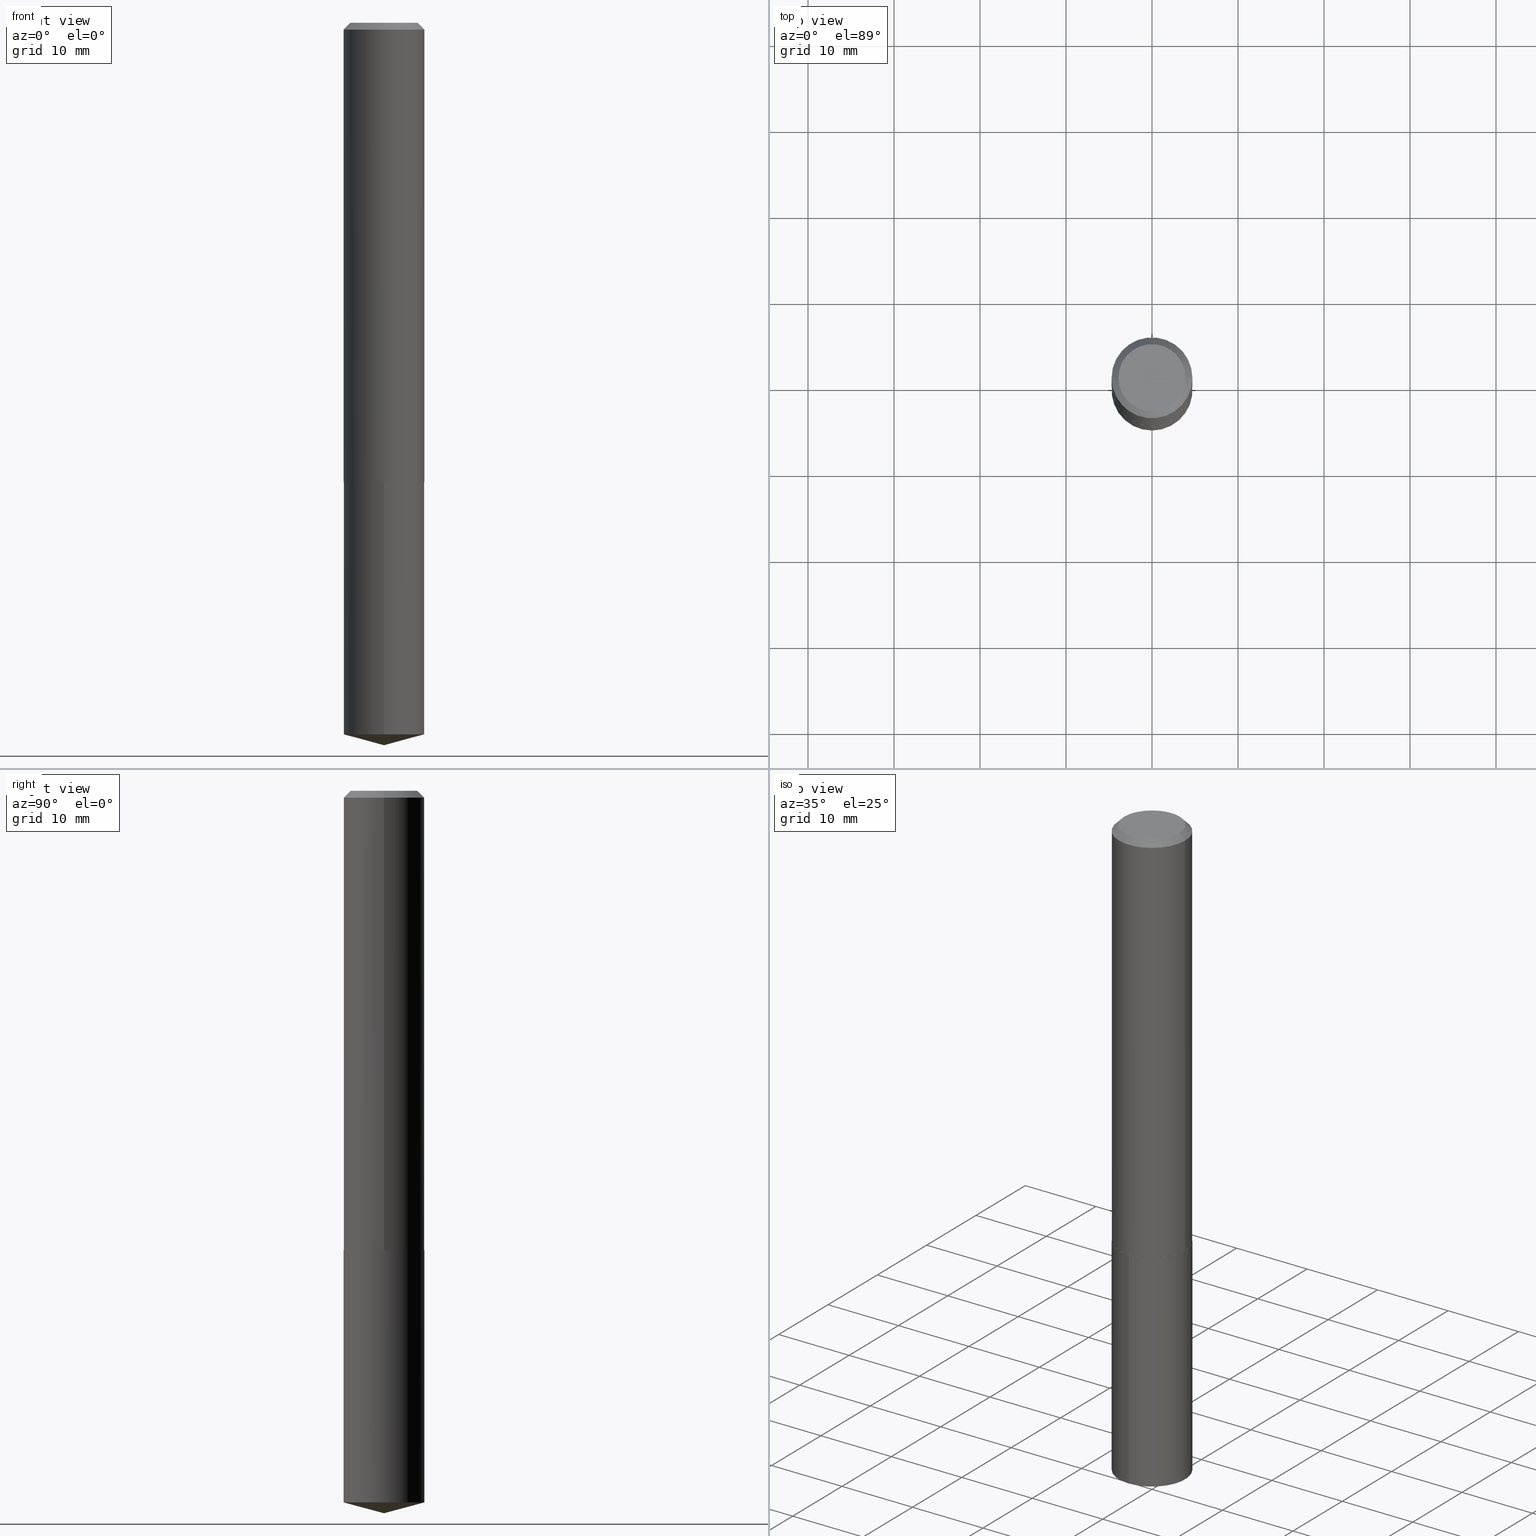
[diagram: canonical four-view strip — front | top / right | iso, engineering-drawing reading convention]
A machine part, canonical four-view strip (front | top / right | iso — engineering-drawing reading convention). The complete STEP part file that produces these views, byte-faithful:
ISO-10303-21;
HEADER;
FILE_DESCRIPTION (( 'STEP AP203' ),
    '1' );
FILE_NAME ('69029.STEP',
    '2024-04-23T14:28:28',
    ( '' ),
    ( '' ),
    'SwSTEP 2.0',
    'SolidWorks 2023',
    '' );
FILE_SCHEMA (( 'CONFIG_CONTROL_DESIGN' ));
ENDSEC;

DATA;
#1 = SECURITY_CLASSIFICATION_LEVEL ( 'unclassified' ) ;
#2 = ORIENTED_EDGE ( 'NONE', *, *, #310, .T. ) ;
#3 = EDGE_CURVE ( 'NONE', #184, #368, #292, .T. ) ;
#4 = ORIENTED_EDGE ( 'NONE', *, *, #299, .T. ) ;
#5 = CALENDAR_DATE ( 2024, 23, 4 ) ;
#6 = CIRCLE ( 'NONE', #123, 0.1850500000000000200 ) ;
#7 = EDGE_LOOP ( 'NONE', ( #304, #73, #154, #313 ) ) ;
#8 = ADVANCED_FACE ( 'NONE', ( #322 ), #260, .T. ) ;
#9 = ORIENTED_EDGE ( 'NONE', *, *, #159, .T. ) ;
#10 = AXIS2_PLACEMENT_3D ( 'NONE', #126, #160, #345 ) ;
#11 = CC_DESIGN_SECURITY_CLASSIFICATION ( #141, ( #371 ) ) ;
#12 = CARTESIAN_POINT ( 'NONE',  ( -1.292197243505792011E-15, -0.1850500000000073197, -2.102399999999999824 ) ) ;
#13 = LINE ( 'NONE', #106, #315 ) ;
#14 = FACE_OUTER_BOUND ( 'NONE', #180, .T. ) ;
#15 = PERSON_AND_ORGANIZATION_ROLE ( 'design_owner' ) ;
#16 = FACE_OUTER_BOUND ( 'NONE', #250, .T. ) ;
#17 = CIRCLE ( 'NONE', #239, 0.1845500000000003527 ) ;
#18 = LINE ( 'NONE', #12, #282 ) ;
#19 = LINE ( 'NONE', #284, #112 ) ;
#20 = DIRECTION ( 'NONE',  ( 1.000000000000000000, -6.982962677686265922E-15, 0.000000000000000000 ) ) ;
#21 = CC_DESIGN_PERSON_AND_ORGANIZATION_ASSIGNMENT ( #122, #248, ( #371 ) ) ;
#22 = DIRECTION ( 'NONE',  ( 6.863315791527696626E-15, 0.9659258262890698665, 0.2588190451025147998 ) ) ;
#23 = LINE ( 'NONE', #111, #67 ) ;
#24 = CARTESIAN_POINT ( 'NONE',  ( 7.966223129250220478E-29, -1.137345700306574597E-14, -3.257516001940621742 ) ) ;
#25 = AXIS2_PLACEMENT_3D ( 'NONE', #229, #197, #285 ) ;
#26 = AXIS2_PLACEMENT_3D ( 'NONE', #202, #388, #20 ) ;
#27 = PRODUCT_DEFINITION ( 'UNKNOWN', '', #371, #74 ) ;
#28 = DIRECTION ( 'NONE',  ( -6.982962677686265133E-15, -1.000000000000000000, 2.952551195530141356E-15 ) ) ;
#29 = MANIFOLD_SOLID_BREP ( 'Body-Move/Copy2[1]', #78 ) ;
#30 = COORDINATED_UNIVERSAL_TIME_OFFSET ( 5, 0, .BEHIND. ) ;
#31 = ORIENTED_EDGE ( 'NONE', *, *, #254, .T. ) ;
#32 = EDGE_CURVE ( 'NONE', #337, #335, #109, .T. ) ;
#33 = CARTESIAN_POINT ( 'NONE',  ( 5.141353618123632749E-29, -7.340490366783830084E-15, -2.102400000000000713 ) ) ;
#34 = ORIENTED_EDGE ( 'NONE', *, *, #289, .F. ) ;
#35 = CALENDAR_DATE ( 2024, 23, 4 ) ;
#36 = AXIS2_PLACEMENT_3D ( 'NONE', #24, #140, #82 ) ;
#37 = ORIENTED_EDGE ( 'NONE', *, *, #273, .T. ) ;
#38 = VERTEX_POINT ( 'NONE', #320 ) ;
#39 = CARTESIAN_POINT ( 'NONE',  ( -0.1537999999999999645, 1.128534055747571411E-15, 2.449293598217711460E-19 ) ) ;
#40 = CIRCLE ( 'NONE', #152, 0.1850500000000000200 ) ;
#41 = LOCAL_TIME ( 10, 28, 28.00000000000000000, #30 ) ;
#42 = FACE_OUTER_BOUND ( 'NONE', #309, .T. ) ;
#43 = APPROVAL ( #150, 'UNSPECIFIED' ) ;
#44 =( NAMED_UNIT ( * ) PLANE_ANGLE_UNIT ( ) SI_UNIT ( $, .RADIAN. ) );
#45 = ORIENTED_EDGE ( 'NONE', *, *, #172, .F. ) ;
#46 = APPROVAL_STATUS ( 'not_yet_approved' ) ;
#47 = ADVANCED_FACE ( 'NONE', ( #16 ), #131, .F. ) ;
#48 = CARTESIAN_POINT ( 'NONE',  ( 0.000000000000000000, 0.000000000000000000, 0.000000000000000000 ) ) ;
#49 = LINE ( 'NONE', #132, #353 ) ;
#50 = DIRECTION ( 'NONE',  ( -6.982962677686265133E-15, -1.000000000000000000, 2.952551195530141356E-15 ) ) ;
#51 = CONICAL_SURFACE ( 'NONE', #26, 0.1850500000000002698, 0.7853981633974482790 ) ;
#52 = EDGE_CURVE ( 'NONE', #149, #306, #18, .T. ) ;
#53 = APPLICATION_PROTOCOL_DEFINITION ( 'international standard', 'config_control_design', 1994, #88 ) ;
#54 = LINE ( 'NONE', #55, #105 ) ;
#55 = CARTESIAN_POINT ( 'NONE',  ( 0.1850500000000000200, -1.378643946326470928E-15, -0.03125000000000021511 ) ) ;
#56 = DIRECTION ( 'NONE',  ( 1.000000000000000000, -6.982962677686267499E-15, 0.000000000000000000 ) ) ;
#57 = CIRCLE ( 'NONE', #157, 0.1537999999999999645 ) ;
#58 = DIRECTION ( 'NONE',  ( -2.445468806185136597E-29, 3.491481338843145583E-15, 1.000000000000000000 ) ) ;
#59 = DATE_AND_TIME ( #331, #41 ) ;
#60 = ORIENTED_EDGE ( 'NONE', *, *, #305, .T. ) ;
#61 = VECTOR ( 'NONE', #162, 39.37007874015748854 ) ;
#62 = ORIENTED_EDGE ( 'NONE', *, *, #100, .F. ) ;
#63 = ORIENTED_EDGE ( 'NONE', *, *, #227, .T. ) ;
#64 = PERSON_AND_ORGANIZATION_ROLE ( 'creator' ) ;
#65 = EDGE_CURVE ( 'NONE', #193, #178, #57, .T. ) ;
#66 = ORIENTED_EDGE ( 'NONE', *, *, #3, .F. ) ;
#67 = VECTOR ( 'NONE', #295, 39.37007874015748143 ) ;
#68 = EDGE_LOOP ( 'NONE', ( #246, #146, #62, #332 ) ) ;
#69 = DIRECTION ( 'NONE',  ( 6.982962677686265922E-15, 1.000000000000000000, -3.491395348611256863E-15 ) ) ;
#70 = ORIENTED_EDGE ( 'NONE', *, *, #327, .F. ) ;
#71 = ADVANCED_FACE ( 'NONE', ( #42 ), #218, .T. ) ;
#72 = DIRECTION ( 'NONE',  ( 1.000000000000000000, -6.982962677686267499E-15, 4.876176775795935793E-29 ) ) ;
#73 = ORIENTED_EDGE ( 'NONE', *, *, #289, .T. ) ;
#74 = DESIGN_CONTEXT ( 'detailed design', #88, 'design' ) ;
#75 = CALENDAR_DATE ( 2024, 23, 4 ) ;
#76 = DIRECTION ( 'NONE',  ( 1.000000000000000000, -6.982962677686265922E-15, 0.000000000000000000 ) ) ;
#77 = PERSON_AND_ORGANIZATION ( #339, #265 ) ;
#78 = CLOSED_SHELL ( 'NONE', ( #181, #155, #297, #8, #47 ) ) ;
#79 = CARTESIAN_POINT ( 'NONE',  ( 7.642090019328604414E-31, -1.091087918388490513E-16, -0.03125000000000021511 ) ) ;
#80 = APPROVAL_PERSON_ORGANIZATION ( #318, #90, #380 ) ;
#81 = DIRECTION ( 'NONE',  ( 2.438088387897960049E-29, -3.491481338843145188E-15, -1.000000000000000000 ) ) ;
#82 = DIRECTION ( 'NONE',  ( -6.982962677686265133E-15, -1.000000000000000000, 2.952551195530141356E-15 ) ) ;
#83 = ADVANCED_BREP_SHAPE_REPRESENTATION ( '69029', ( #29, #138, #208 ), #386 ) ;
#84 = CARTESIAN_POINT ( 'NONE',  ( 0.1845500000000003527, -8.629196128950833717E-15, -2.102400000000000713 ) ) ;
#85 = AXIS2_PLACEMENT_3D ( 'NONE', #103, #104, #50 ) ;
#86 = AXIS2_PLACEMENT_3D ( 'NONE', #316, #347, #165 ) ;
#87 = PERSON_AND_ORGANIZATION_ROLE ( 'design_supplier' ) ;
#88 = APPLICATION_CONTEXT ( 'configuration controlled 3d designs of mechanical parts and assemblies' ) ;
#89 = DATE_AND_TIME ( #5, #203 ) ;
#90 = APPROVAL ( #46, 'UNSPECIFIED' ) ;
#91 = ORIENTED_EDGE ( 'NONE', *, *, #32, .F. ) ;
#92 = ORIENTED_EDGE ( 'NONE', *, *, #65, .T. ) ;
#93 = AXIS2_PLACEMENT_3D ( 'NONE', #101, #288, #76 ) ;
#94 = SHAPE_DEFINITION_REPRESENTATION ( #129, #83 ) ;
#95 = ORIENTED_EDGE ( 'NONE', *, *, #214, .T. ) ;
#96 = ADVANCED_FACE ( 'NONE', ( #252 ), #107, .T. ) ;
#97 = ORIENTED_EDGE ( 'NONE', *, *, #172, .T. ) ;
#98 = EDGE_LOOP ( 'NONE', ( #153, #31, #249 ) ) ;
#99 = AXIS2_PLACEMENT_3D ( 'NONE', #137, #356, #264 ) ;
#100 = EDGE_CURVE ( 'NONE', #213, #335, #40, .T. ) ;
#101 = CARTESIAN_POINT ( 'NONE',  ( 5.140130883720539947E-29, -7.338744626114409370E-15, -2.101900000000000546 ) ) ;
#102 = APPLICATION_PROTOCOL_DEFINITION ( 'international standard', 'config_control_design', 1994, #108 ) ;
#103 = CARTESIAN_POINT ( 'NONE',  ( 7.966223129250220478E-29, -1.137345700306574597E-14, -3.257516001940621742 ) ) ;
#104 = DIRECTION ( 'NONE',  ( -2.445528852843129027E-29, 3.491395348611256863E-15, 1.000000000000000000 ) ) ;
#105 = VECTOR ( 'NONE', #170, 39.37007874015748854 ) ;
#106 = CARTESIAN_POINT ( 'NONE',  ( -0.1850500000000002698, -6.023885293590342059E-15, -2.101900000000000546 ) ) ;
#107 = CYLINDRICAL_SURFACE ( 'NONE', #258, 0.1850500000000001311 ) ;
#108 = APPLICATION_CONTEXT ( 'configuration controlled 3d designs of mechanical parts and assemblies' ) ;
#109 = LINE ( 'NONE', #188, #333 ) ;
#110 = CARTESIAN_POINT ( 'NONE',  ( 0.1850500000000001311, -1.292197243505844668E-15, 9.023365123610386073E-30 ) ) ;
#111 = CARTESIAN_POINT ( 'NONE',  ( 8.087355985049984954E-29, -1.154675512911933540E-14, -3.307100000000000151 ) ) ;
#112 = VECTOR ( 'NONE', #22, 39.37007874015748143 ) ;
#113 = DIRECTION ( 'NONE',  ( -1.000000000000000000, 6.982962677686267499E-15, 0.000000000000000000 ) ) ;
#114 = ADVANCED_FACE ( 'NONE', ( #350 ), #314, .T. ) ;
#115 = DIMENSIONAL_EXPONENTS ( 1.000000000000000000, 0.000000000000000000, 0.000000000000000000, 0.000000000000000000, 0.000000000000000000, 0.000000000000000000, 0.000000000000000000 ) ;
#116 = CARTESIAN_POINT ( 'NONE',  ( 5.141353618123632749E-29, -7.340490366783830084E-15, -2.102400000000000713 ) ) ;
#117 = AXIS2_PLACEMENT_3D ( 'NONE', #354, #81, #204 ) ;
#118 = DATE_AND_TIME ( #35, #179 ) ;
#119 = ORIENTED_EDGE ( 'NONE', *, *, #242, .T. ) ;
#120 = EDGE_LOOP ( 'NONE', ( #70, #9, #280, #187 ) ) ;
#121 = CIRCLE ( 'NONE', #171, 0.1850499999999999923 ) ;
#122 = PERSON_AND_ORGANIZATION ( #339, #265 ) ;
#123 = AXIS2_PLACEMENT_3D ( 'NONE', #328, #58, #56 ) ;
#124 = EDGE_LOOP ( 'NONE', ( #317, #308, #182 ) ) ;
#125 = ORIENTED_EDGE ( 'NONE', *, *, #227, .F. ) ;
#126 = CARTESIAN_POINT ( 'NONE',  ( 5.141353618123632749E-29, -7.340490366783830084E-15, -2.102400000000000713 ) ) ;
#127 = DIRECTION ( 'NONE',  ( 2.445528852843128747E-29, -3.491395348611256863E-15, -1.000000000000000000 ) ) ;
#128 = CYLINDRICAL_SURFACE ( 'NONE', #344, 0.1850499999999999923 ) ;
#129 = PRODUCT_DEFINITION_SHAPE ( 'NONE', 'NONE',  #27 ) ;
#130 = FACE_OUTER_BOUND ( 'NONE', #338, .T. ) ;
#131 = PLANE ( 'NONE',  #233 ) ;
#132 = CARTESIAN_POINT ( 'NONE',  ( 1.314859332524116418E-15, 0.1850499999999926370, -2.102400000000001157 ) ) ;
#133 = FACE_OUTER_BOUND ( 'NONE', #124, .T. ) ;
#134 =( CONVERSION_BASED_UNIT ( 'INCH', #230 ) LENGTH_UNIT ( ) NAMED_UNIT ( #115 ) );
#135 = CARTESIAN_POINT ( 'NONE',  ( -1.292197243505792011E-15, -0.1850500000000073197, -2.102399999999999824 ) ) ;
#136 = CARTESIAN_POINT ( 'NONE',  ( 0.000000000000000000, 0.000000000000000000, 0.000000000000000000 ) ) ;
#137 = CARTESIAN_POINT ( 'NONE',  ( 5.141353618123632749E-29, -7.340490366783830084E-15, -2.102400000000000713 ) ) ;
#138 = MANIFOLD_SOLID_BREP ( 'Body-Move/Copy2[2]', #224 ) ;
#139 = CONICAL_SURFACE ( 'NONE', #25, 146.9311341562565758, 1.308996938995749870 ) ;
#140 = DIRECTION ( 'NONE',  ( -2.445528852843129027E-29, 3.491395348611256863E-15, 1.000000000000000000 ) ) ;
#141 = SECURITY_CLASSIFICATION ( '', '', #1 ) ;
#142 = DIRECTION ( 'NONE',  ( 1.000000000000000000, -6.982962677686265922E-15, 0.000000000000000000 ) ) ;
#143 = APPROVAL_DATE_TIME ( #59, #231 ) ;
#144 = AXIS2_PLACEMENT_3D ( 'NONE', #33, #174, #142 ) ;
#145 = LOCAL_TIME ( 10, 28, 28.00000000000000000, #228 ) ;
#146 = ORIENTED_EDGE ( 'NONE', *, *, #32, .T. ) ;
#147 = PERSON_AND_ORGANIZATION_ROLE ( 'classification_officer' ) ;
#148 = FACE_OUTER_BOUND ( 'NONE', #272, .T. ) ;
#149 = VERTEX_POINT ( 'NONE', #281 ) ;
#150 = APPROVAL_STATUS ( 'not_yet_approved' ) ;
#151 = VERTEX_POINT ( 'NONE', #375 ) ;
#152 = AXIS2_PLACEMENT_3D ( 'NONE', #156, #226, #348 ) ;
#153 = ORIENTED_EDGE ( 'NONE', *, *, #389, .F. ) ;
#154 = ORIENTED_EDGE ( 'NONE', *, *, #3, .T. ) ;
#155 = ADVANCED_FACE ( 'NONE', ( #133 ), #139, .T. ) ;
#156 = CARTESIAN_POINT ( 'NONE',  ( 7.642090019328604414E-31, -1.091087918388490513E-16, -0.03125000000000021511 ) ) ;
#157 = AXIS2_PLACEMENT_3D ( 'NONE', #257, #220, #342 ) ;
#158 = AXIS2_PLACEMENT_3D ( 'NONE', #201, #326, #330 ) ;
#159 = EDGE_CURVE ( 'NONE', #381, #149, #364, .T. ) ;
#160 = DIRECTION ( 'NONE',  ( -2.445528852843129027E-29, 3.491395348611256863E-15, 1.000000000000000000 ) ) ;
#161 = DIRECTION ( 'NONE',  ( 1.000000000000000000, 0.000000000000000000, 0.000000000000000000 ) ) ;
#162 = DIRECTION ( 'NONE',  ( 0.7071067811865474617, -2.468850131082256666E-15, 0.7071067811865474617 ) ) ;
#163 = DIRECTION ( 'NONE',  ( 1.000000000000000000, -6.982962677686267499E-15, 4.876176775795935793E-29 ) ) ;
#164 = CIRCLE ( 'NONE', #144, 0.1845500000000003527 ) ;
#165 = DIRECTION ( 'NONE',  ( -1.000000000000000000, 6.982962677686267499E-15, 0.000000000000000000 ) ) ;
#166 = CARTESIAN_POINT ( 'NONE',  ( -0.1850500000000000200, 1.183088451666994778E-15, -0.03125000000000021511 ) ) ;
#167 = CARTESIAN_POINT ( 'NONE',  ( -0.1850500000000000200, -2.409067376452562318E-15, -0.03125000000000021511 ) ) ;
#168 = LINE ( 'NONE', #110, #216 ) ;
#169 = CC_DESIGN_DATE_AND_TIME_ASSIGNMENT ( #176, #205, ( #27 ) ) ;
#170 = DIRECTION ( 'NONE',  ( 0.7071067811865454633, -7.319954787623246579E-15, -0.7071067811865493491 ) ) ;
#171 = AXIS2_PLACEMENT_3D ( 'NONE', #236, #238, #28 ) ;
#172 = EDGE_CURVE ( 'NONE', #178, #335, #340, .T. ) ;
#173 = CC_DESIGN_APPROVAL ( #90, ( #27 ) ) ;
#174 = DIRECTION ( 'NONE',  ( -2.445468806185136597E-29, 3.491481338843145583E-15, 1.000000000000000000 ) ) ;
#175 = FACE_OUTER_BOUND ( 'NONE', #207, .T. ) ;
#176 = DATE_AND_TIME ( #269, #379 ) ;
#177 = COORDINATED_UNIVERSAL_TIME_OFFSET ( 5, 0, .BEHIND. ) ;
#178 = VERTEX_POINT ( 'NONE', #39 ) ;
#179 = LOCAL_TIME ( 10, 28, 28.00000000000000000, #275 ) ;
#180 = EDGE_LOOP ( 'NONE', ( #4, #215, #362, #274 ) ) ;
#181 = ADVANCED_FACE ( 'NONE', ( #14 ), #128, .T. ) ;
#182 = ORIENTED_EDGE ( 'NONE', *, *, #299, .F. ) ;
#183 = APPROVAL_ROLE ( '' ) ;
#184 = VERTEX_POINT ( 'NONE', #84 ) ;
#185 = AXIS2_PLACEMENT_3D ( 'NONE', #294, #232, #298 ) ;
#186 = EDGE_CURVE ( 'NONE', #368, #213, #168, .T. ) ;
#187 = ORIENTED_EDGE ( 'NONE', *, *, #273, .F. ) ;
#188 = CARTESIAN_POINT ( 'NONE',  ( -0.1850500000000001311, 1.314859332524066325E-15, -9.102489384516709155E-30 ) ) ;
#189 = DIRECTION ( 'NONE',  ( -2.445468806185136597E-29, 3.491481338843145583E-15, 1.000000000000000000 ) ) ;
#190 = APPROVAL_PERSON_ORGANIZATION ( #307, #43, #183 ) ;
#191 = PRODUCT ( '69029', '69029', '', ( #341 ) ) ;
#192 = CARTESIAN_POINT ( 'NONE',  ( -0.1845500000000003527, -6.026534520764453260E-15, -2.102400000000000713 ) ) ;
#193 = VERTEX_POINT ( 'NONE', #200 ) ;
#194 = DIRECTION ( 'NONE',  ( 0.000000000000000000, 0.000000000000000000, 1.000000000000000000 ) ) ;
#195 = DIRECTION ( 'NONE',  ( -2.445468806185136877E-29, 3.491481338843145188E-15, 1.000000000000000000 ) ) ;
#196 = DATE_AND_TIME ( #75, #145 ) ;
#197 = DIRECTION ( 'NONE',  ( -2.445528852843129027E-29, 3.491395348611256863E-15, 1.000000000000000000 ) ) ;
#198 = CIRCLE ( 'NONE', #36, 0.1850499999999999923 ) ;
#199 = DIRECTION ( 'NONE',  ( -2.445468806185136597E-29, 3.491481338843145583E-15, 1.000000000000000000 ) ) ;
#200 = CARTESIAN_POINT ( 'NONE',  ( 0.1537999999999999645, -1.216894269191866197E-15, 2.449293598374824010E-19 ) ) ;
#201 = CARTESIAN_POINT ( 'NONE',  ( -8.819318127061724465E-28, 1.259099354445889386E-13, 36.06297874015748306 ) ) ;
#202 = CARTESIAN_POINT ( 'NONE',  ( 5.140130883720539947E-29, -7.338744626114409370E-15, -2.101900000000000546 ) ) ;
#203 = LOCAL_TIME ( 10, 28, 28.00000000000000000, #177 ) ;
#204 = DIRECTION ( 'NONE',  ( -1.000000000000000000, 6.982962677686265922E-15, -4.876176775795935793E-29 ) ) ;
#205 = DATE_TIME_ROLE ( 'creation_date' ) ;
#206 = ORIENTED_EDGE ( 'NONE', *, *, #247, .T. ) ;
#207 = EDGE_LOOP ( 'NONE', ( #2, #92 ) ) ;
#208 = AXIS2_PLACEMENT_3D ( 'NONE', #136, #194, #161 ) ;
#209 = CC_DESIGN_PERSON_AND_ORGANIZATION_ASSIGNMENT ( #363, #147, ( #141 ) ) ;
#210 = PERSON_AND_ORGANIZATION ( #339, #265 ) ;
#211 = ORIENTED_EDGE ( 'NONE', *, *, #319, .T. ) ;
#212 = UNCERTAINTY_MEASURE_WITH_UNIT (LENGTH_MEASURE( 1.000000000000000082E-05 ), #134, 'distance_accuracy_value', 'NONE');
#213 = VERTEX_POINT ( 'NONE', #387 ) ;
#214 = EDGE_CURVE ( 'NONE', #306, #151, #121, .T. ) ;
#215 = ORIENTED_EDGE ( 'NONE', *, *, #327, .T. ) ;
#216 = VECTOR ( 'NONE', #267, 39.37007874015748143 ) ;
#217 = CC_DESIGN_APPROVAL ( #43, ( #371 ) ) ;
#218 = CYLINDRICAL_SURFACE ( 'NONE', #323, 0.1850500000000001311 ) ;
#219 = DIRECTION ( 'NONE',  ( -2.445528852843129027E-29, 3.491395348611256863E-15, 1.000000000000000000 ) ) ;
#220 = DIRECTION ( 'NONE',  ( -2.445468806185136597E-29, 3.491481338843145583E-15, 1.000000000000000000 ) ) ;
#221 = ADVANCED_FACE ( 'NONE', ( #262 ), #358, .T. ) ;
#222 = ORIENTED_EDGE ( 'NONE', *, *, #305, .F. ) ;
#223 = CC_DESIGN_PERSON_AND_ORGANIZATION_ASSIGNMENT ( #77, #15, ( #191 ) ) ;
#224 = CLOSED_SHELL ( 'NONE', ( #221, #96, #302, #374, #114, #71, #312, #283 ) ) ;
#225 = AXIS2_PLACEMENT_3D ( 'NONE', #253, #199, #287 ) ;
#226 = DIRECTION ( 'NONE',  ( -2.445468806185136597E-29, 3.491481338843145583E-15, 1.000000000000000000 ) ) ;
#227 = EDGE_CURVE ( 'NONE', #193, #213, #54, .T. ) ;
#228 = COORDINATED_UNIVERSAL_TIME_OFFSET ( 5, 0, .BEHIND. ) ;
#229 = CARTESIAN_POINT ( 'NONE',  ( -8.819318127061724465E-28, 1.259099354445889386E-13, 36.06297874015748306 ) ) ;
#230 = LENGTH_MEASURE_WITH_UNIT ( LENGTH_MEASURE( 0.02539999999999999897 ), #349 );
#231 = APPROVAL ( #384, 'UNSPECIFIED' ) ;
#232 = DIRECTION ( 'NONE',  ( -2.445468806185136597E-29, 3.491481338843145583E-15, 1.000000000000000000 ) ) ;
#233 = AXIS2_PLACEMENT_3D ( 'NONE', #251, #127, #69 ) ;
#234 = APPROVAL_PERSON_ORGANIZATION ( #210, #231, #367 ) ;
#235 = DIRECTION ( 'NONE',  ( -2.445468806185136597E-29, 3.491481338843145583E-15, 1.000000000000000000 ) ) ;
#236 = CARTESIAN_POINT ( 'NONE',  ( 5.141353618123632749E-29, -7.340490366783830084E-15, -2.102400000000000713 ) ) ;
#237 = CC_DESIGN_PERSON_AND_ORGANIZATION_ASSIGNMENT ( #271, #64, ( #27 ) ) ;
#238 = DIRECTION ( 'NONE',  ( -2.445528852843129027E-29, 3.491395348611256863E-15, 1.000000000000000000 ) ) ;
#239 = AXIS2_PLACEMENT_3D ( 'NONE', #116, #235, #357 ) ;
#240 = APPROVAL_DATE_TIME ( #118, #43 ) ;
#241 = ORIENTED_EDGE ( 'NONE', *, *, #247, .F. ) ;
#242 = EDGE_CURVE ( 'NONE', #337, #368, #329, .T. ) ;
#243 = ORIENTED_EDGE ( 'NONE', *, *, #355, .F. ) ;
#244 = VECTOR ( 'NONE', #311, 39.37007874015748854 ) ;
#245 = CIRCLE ( 'NONE', #225, 0.1850500000000002698 ) ;
#246 = ORIENTED_EDGE ( 'NONE', *, *, #355, .T. ) ;
#247 = EDGE_CURVE ( 'NONE', #184, #361, #17, .T. ) ;
#248 = PERSON_AND_ORGANIZATION_ROLE ( 'creator' ) ;
#249 = ORIENTED_EDGE ( 'NONE', *, *, #159, .F. ) ;
#250 = EDGE_LOOP ( 'NONE', ( #95, #37 ) ) ;
#251 = CARTESIAN_POINT ( 'NONE',  ( 5.141353618123632749E-29, -7.340490366783830084E-15, -2.102400000000000713 ) ) ;
#252 = FACE_OUTER_BOUND ( 'NONE', #68, .T. ) ;
#253 = CARTESIAN_POINT ( 'NONE',  ( 5.140130883720539947E-29, -7.338744626114409370E-15, -2.101900000000000546 ) ) ;
#254 = EDGE_CURVE ( 'NONE', #38, #149, #23, .T. ) ;
#255 = DIRECTION ( 'NONE',  ( -2.445468806185136597E-29, 3.491481338843145583E-15, 1.000000000000000000 ) ) ;
#256 = FACE_OUTER_BOUND ( 'NONE', #278, .T. ) ;
#257 = CARTESIAN_POINT ( 'NONE',  ( -5.989671091818699506E-48, 8.551662891794013634E-34, 2.449293598294725065E-19 ) ) ;
#258 = AXIS2_PLACEMENT_3D ( 'NONE', #48, #255, #163 ) ;
#259 = CARTESIAN_POINT ( 'NONE',  ( -0.1850500000000002698, -6.023885293590342059E-15, -2.101900000000000546 ) ) ;
#260 = CYLINDRICAL_SURFACE ( 'NONE', #10, 0.1850499999999999923 ) ;
#261 = DIRECTION ( 'NONE',  ( 1.000000000000000000, -6.982962677686267499E-15, 4.876175355846217494E-29 ) ) ;
#262 = FACE_OUTER_BOUND ( 'NONE', #369, .T. ) ;
#263 = COORDINATED_UNIVERSAL_TIME_OFFSET ( 5, 0, .BEHIND. ) ;
#264 = DIRECTION ( 'NONE',  ( -6.982962677686265133E-15, -1.000000000000000000, 2.952551195530141356E-15 ) ) ;
#265 = ORGANIZATION ( 'UNSPECIFIED', 'UNSPECIFIED', '' ) ;
#266 = CC_DESIGN_DATE_AND_TIME_ASSIGNMENT ( #89, #360, ( #141 ) ) ;
#267 = DIRECTION ( 'NONE',  ( -2.445468806185136877E-29, 3.491481338843145188E-15, 1.000000000000000000 ) ) ;
#268 = FACE_OUTER_BOUND ( 'NONE', #98, .T. ) ;
#269 = CALENDAR_DATE ( 2024, 23, 4 ) ;
#270 = CIRCLE ( 'NONE', #346, 0.1537999999999999645 ) ;
#271 = PERSON_AND_ORGANIZATION ( #339, #265 ) ;
#272 = EDGE_LOOP ( 'NONE', ( #206, #211, #243, #66 ) ) ;
#273 = EDGE_CURVE ( 'NONE', #151, #306, #290, .T. ) ;
#274 = ORIENTED_EDGE ( 'NONE', *, *, #52, .F. ) ;
#275 = COORDINATED_UNIVERSAL_TIME_OFFSET ( 5, 0, .BEHIND. ) ;
#276 = AXIS2_PLACEMENT_3D ( 'NONE', #79, #352, #113 ) ;
#277 = CC_DESIGN_APPROVAL ( #231, ( #141 ) ) ;
#278 = EDGE_LOOP ( 'NONE', ( #241, #34 ) ) ;
#279 = ORIENTED_EDGE ( 'NONE', *, *, #100, .T. ) ;
#280 = ORIENTED_EDGE ( 'NONE', *, *, #52, .T. ) ;
#281 = CARTESIAN_POINT ( 'NONE',  ( -1.292197243505763612E-15, -0.1850500000000113165, -3.257516001940621297 ) ) ;
#282 = VECTOR ( 'NONE', #372, 39.37007874015748143 ) ;
#283 = ADVANCED_FACE ( 'NONE', ( #175 ), #385, .F. ) ;
#284 = CARTESIAN_POINT ( 'NONE',  ( 8.087610683225803054E-29, -1.154639355739228894E-14, -3.307100000000000151 ) ) ;
#285 = DIRECTION ( 'NONE',  ( -6.982962677686265922E-15, -1.000000000000000000, 3.510303681827602962E-15 ) ) ;
#286 = CARTESIAN_POINT ( 'NONE',  ( 0.1850500000000002698, -8.630941869620254432E-15, -2.101900000000000546 ) ) ;
#287 = DIRECTION ( 'NONE',  ( 1.000000000000000000, -6.982962677686265922E-15, 0.000000000000000000 ) ) ;
#288 = DIRECTION ( 'NONE',  ( -2.445468806185136597E-29, 3.491481338843145583E-15, 1.000000000000000000 ) ) ;
#289 = EDGE_CURVE ( 'NONE', #361, #184, #164, .T. ) ;
#290 = CIRCLE ( 'NONE', #99, 0.1850499999999999923 ) ;
#291 = CARTESIAN_POINT ( 'NONE',  ( 0.1850500000000002698, -8.630941869620254432E-15, -2.101900000000000546 ) ) ;
#292 = LINE ( 'NONE', #286, #61 ) ;
#293 = CARTESIAN_POINT ( 'NONE',  ( 1.314859332524144620E-15, 0.1850499999999885847, -3.257516001940622186 ) ) ;
#294 = CARTESIAN_POINT ( 'NONE',  ( 5.140130883720539947E-29, -7.338744626114409370E-15, -2.101900000000000546 ) ) ;
#295 = DIRECTION ( 'NONE',  ( -6.745023994389843077E-15, -0.9659258262890679791, 0.2588190451025215721 ) ) ;
#296 = CONICAL_SURFACE ( 'NONE', #86, 0.1850500000000000200, 0.7853981633974456145 ) ;
#297 = ADVANCED_FACE ( 'NONE', ( #268 ), #359, .T. ) ;
#298 = DIRECTION ( 'NONE',  ( 1.000000000000000000, -6.982962677686265922E-15, 0.000000000000000000 ) ) ;
#299 = EDGE_CURVE ( 'NONE', #149, #381, #198, .T. ) ;
#300 = AXIS2_PLACEMENT_3D ( 'NONE', #373, #351, #377 ) ;
#301 = ORIENTED_EDGE ( 'NONE', *, *, #186, .T. ) ;
#302 = ADVANCED_FACE ( 'NONE', ( #148 ), #51, .T. ) ;
#303 = DIRECTION ( 'NONE',  ( -6.982962677686265133E-15, -1.000000000000000000, 2.952551195530141356E-15 ) ) ;
#304 = ORIENTED_EDGE ( 'NONE', *, *, #319, .F. ) ;
#305 = EDGE_CURVE ( 'NONE', #335, #213, #6, .T. ) ;
#306 = VERTEX_POINT ( 'NONE', #135 ) ;
#307 = PERSON_AND_ORGANIZATION ( #339, #265 ) ;
#308 = ORIENTED_EDGE ( 'NONE', *, *, #389, .T. ) ;
#309 = EDGE_LOOP ( 'NONE', ( #91, #119, #301, #222 ) ) ;
#310 = EDGE_CURVE ( 'NONE', #178, #193, #270, .T. ) ;
#311 = DIRECTION ( 'NONE',  ( -0.7071067811865454633, 2.468850131082235761E-15, -0.7071067811865493491 ) ) ;
#312 = ADVANCED_FACE ( 'NONE', ( #130 ), #296, .T. ) ;
#313 = ORIENTED_EDGE ( 'NONE', *, *, #242, .F. ) ;
#314 = CONICAL_SURFACE ( 'NONE', #93, 0.1850500000000002698, 0.7853981633974482790 ) ;
#315 = VECTOR ( 'NONE', #321, 39.37007874015748854 ) ;
#316 = CARTESIAN_POINT ( 'NONE',  ( 7.642090019328604414E-31, -1.091087918388490513E-16, -0.03125000000000021511 ) ) ;
#317 = ORIENTED_EDGE ( 'NONE', *, *, #254, .F. ) ;
#318 = PERSON_AND_ORGANIZATION ( #339, #265 ) ;
#319 = EDGE_CURVE ( 'NONE', #361, #337, #13, .T. ) ;
#320 = CARTESIAN_POINT ( 'NONE',  ( 8.087608469237512060E-29, -1.154639355739228894E-14, -3.307100000000000151 ) ) ;
#321 = DIRECTION ( 'NONE',  ( -0.7071067811865474617, 7.493145998870352582E-15, 0.7071067811865474617 ) ) ;
#322 = FACE_OUTER_BOUND ( 'NONE', #120, .T. ) ;
#323 = AXIS2_PLACEMENT_3D ( 'NONE', #378, #189, #72 ) ;
#324 = PLANE ( 'NONE',  #300 ) ;
#325 = DIRECTION ( 'NONE',  ( -2.445528852843129027E-29, 3.491395348611256863E-15, 1.000000000000000000 ) ) ;
#326 = DIRECTION ( 'NONE',  ( -2.445528852843129027E-29, 3.491395348611256863E-15, 1.000000000000000000 ) ) ;
#327 = EDGE_CURVE ( 'NONE', #381, #151, #49, .T. ) ;
#328 = CARTESIAN_POINT ( 'NONE',  ( 7.642090019328604414E-31, -1.091087918388490513E-16, -0.03125000000000021511 ) ) ;
#329 = CIRCLE ( 'NONE', #185, 0.1850500000000002698 ) ;
#330 = DIRECTION ( 'NONE',  ( -6.982962677686265922E-15, -1.000000000000000000, 3.510303681827602962E-15 ) ) ;
#331 = CALENDAR_DATE ( 2024, 23, 4 ) ;
#332 = ORIENTED_EDGE ( 'NONE', *, *, #186, .F. ) ;
#333 = VECTOR ( 'NONE', #195, 39.37007874015748143 ) ;
#334 = ORIENTED_EDGE ( 'NONE', *, *, #65, .F. ) ;
#335 = VERTEX_POINT ( 'NONE', #167 ) ;
#336 = APPROVAL_DATE_TIME ( #196, #90 ) ;
#337 = VERTEX_POINT ( 'NONE', #259 ) ;
#338 = EDGE_LOOP ( 'NONE', ( #125, #365, #97, #60 ) ) ;
#339 = PERSON ( 'UNSPECIFIED', 'UNSPECIFIED', 'UNSPECIFIED', ('UNSPECIFIED'), ('UNSPECIFIED'), ('UNSPECIFIED') ) ;
#340 = LINE ( 'NONE', #166, #244 ) ;
#341 = MECHANICAL_CONTEXT ( 'NONE', #108, 'mechanical' ) ;
#342 = DIRECTION ( 'NONE',  ( 1.000000000000000000, -6.982962677686267499E-15, 4.876175355846217494E-29 ) ) ;
#343 = DIRECTION ( 'NONE',  ( -2.445468806185136597E-29, 3.491481338843145583E-15, 1.000000000000000000 ) ) ;
#344 = AXIS2_PLACEMENT_3D ( 'NONE', #376, #325, #303 ) ;
#345 = DIRECTION ( 'NONE',  ( -6.982962677686265133E-15, -1.000000000000000000, 2.952551195530141356E-15 ) ) ;
#346 = AXIS2_PLACEMENT_3D ( 'NONE', #383, #343, #261 ) ;
#347 = DIRECTION ( 'NONE',  ( 2.445468806185136597E-29, -3.491481338843145583E-15, -1.000000000000000000 ) ) ;
#348 = DIRECTION ( 'NONE',  ( 1.000000000000000000, -6.982962677686267499E-15, 0.000000000000000000 ) ) ;
#349 =( LENGTH_UNIT ( ) NAMED_UNIT ( * ) SI_UNIT ( $, .METRE. ) );
#350 = FACE_OUTER_BOUND ( 'NONE', #7, .T. ) ;
#351 = DIRECTION ( 'NONE',  ( -2.438088387897960049E-29, 3.491481338843145188E-15, 1.000000000000000000 ) ) ;
#352 = DIRECTION ( 'NONE',  ( 2.445468806185136597E-29, -3.491481338843145583E-15, -1.000000000000000000 ) ) ;
#353 = VECTOR ( 'NONE', #219, 39.37007874015748143 ) ;
#354 = CARTESIAN_POINT ( 'NONE',  ( -2.994835545909349753E-48, 4.275831445897006817E-34, 1.224646799147362533E-19 ) ) ;
#355 = EDGE_CURVE ( 'NONE', #368, #337, #245, .T. ) ;
#356 = DIRECTION ( 'NONE',  ( -2.445528852843129027E-29, 3.491395348611256863E-15, 1.000000000000000000 ) ) ;
#357 = DIRECTION ( 'NONE',  ( 1.000000000000000000, -6.982962677686265922E-15, 0.000000000000000000 ) ) ;
#358 = CONICAL_SURFACE ( 'NONE', #276, 0.1850500000000000200, 0.7853981633974456145 ) ;
#359 = CONICAL_SURFACE ( 'NONE', #158, 146.9311341562565758, 1.308996938995749870 ) ;
#360 = DATE_TIME_ROLE ( 'classification_date' ) ;
#361 = VERTEX_POINT ( 'NONE', #192 ) ;
#362 = ORIENTED_EDGE ( 'NONE', *, *, #214, .F. ) ;
#363 = PERSON_AND_ORGANIZATION ( #339, #265 ) ;
#364 = CIRCLE ( 'NONE', #85, 0.1850499999999999923 ) ;
#365 = ORIENTED_EDGE ( 'NONE', *, *, #310, .F. ) ;
#366 = CC_DESIGN_PERSON_AND_ORGANIZATION_ASSIGNMENT ( #390, #87, ( #371 ) ) ;
#367 = APPROVAL_ROLE ( '' ) ;
#368 = VERTEX_POINT ( 'NONE', #291 ) ;
#369 = EDGE_LOOP ( 'NONE', ( #334, #63, #279, #45 ) ) ;
#370 = PRODUCT_RELATED_PRODUCT_CATEGORY ( 'detail', '', ( #191 ) ) ;
#371 = PRODUCT_DEFINITION_FORMATION_WITH_SPECIFIED_SOURCE ( 'ANY', '', #191, .NOT_KNOWN. ) ;
#372 = DIRECTION ( 'NONE',  ( -2.445528852843129027E-29, 3.491395348611256863E-15, 1.000000000000000000 ) ) ;
#373 = CARTESIAN_POINT ( 'NONE',  ( 5.141353618123632749E-29, -7.340490366783830084E-15, -2.102400000000000713 ) ) ;
#374 = ADVANCED_FACE ( 'NONE', ( #256 ), #324, .F. ) ;
#375 = CARTESIAN_POINT ( 'NONE',  ( 1.314859332524144817E-15, 0.1850499999999926370, -2.102400000000001157 ) ) ;
#376 = CARTESIAN_POINT ( 'NONE',  ( 5.141353618123632749E-29, -7.340490366783830084E-15, -2.102400000000000713 ) ) ;
#377 = DIRECTION ( 'NONE',  ( 1.000000000000000000, -6.982962677686265922E-15, 4.876176775795935793E-29 ) ) ;
#378 = CARTESIAN_POINT ( 'NONE',  ( 0.000000000000000000, 0.000000000000000000, 0.000000000000000000 ) ) ;
#379 = LOCAL_TIME ( 10, 28, 28.00000000000000000, #263 ) ;
#380 = APPROVAL_ROLE ( '' ) ;
#381 = VERTEX_POINT ( 'NONE', #293 ) ;
#382 =( NAMED_UNIT ( * ) SI_UNIT ( $, .STERADIAN. ) SOLID_ANGLE_UNIT ( ) );
#383 = CARTESIAN_POINT ( 'NONE',  ( -5.989671091818699506E-48, 8.551662891794013634E-34, 2.449293598294725065E-19 ) ) ;
#384 = APPROVAL_STATUS ( 'not_yet_approved' ) ;
#385 = PLANE ( 'NONE',  #117 ) ;
#386 =( GEOMETRIC_REPRESENTATION_CONTEXT ( 3 ) GLOBAL_UNCERTAINTY_ASSIGNED_CONTEXT ( ( #212 ) ) GLOBAL_UNIT_ASSIGNED_CONTEXT ( ( #134, #44, #382 ) ) REPRESENTATION_CONTEXT ( 'NONE', 'WORKASPACE' ) );
#387 = CARTESIAN_POINT ( 'NONE',  ( 0.1850500000000000200, -1.401306035344692979E-15, -0.03125000000000021511 ) ) ;
#388 = DIRECTION ( 'NONE',  ( -2.445468806185136597E-29, 3.491481338843145583E-15, 1.000000000000000000 ) ) ;
#389 = EDGE_CURVE ( 'NONE', #38, #381, #19, .T. ) ;
#390 = PERSON_AND_ORGANIZATION ( #339, #265 ) ;
ENDSEC;
END-ISO-10303-21;
